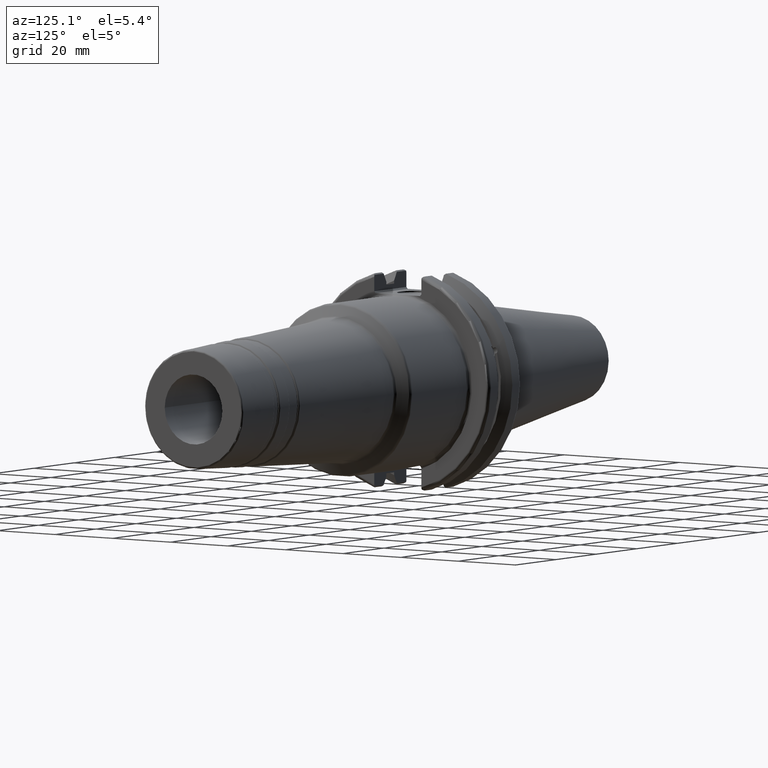
[diagram: clean part render]
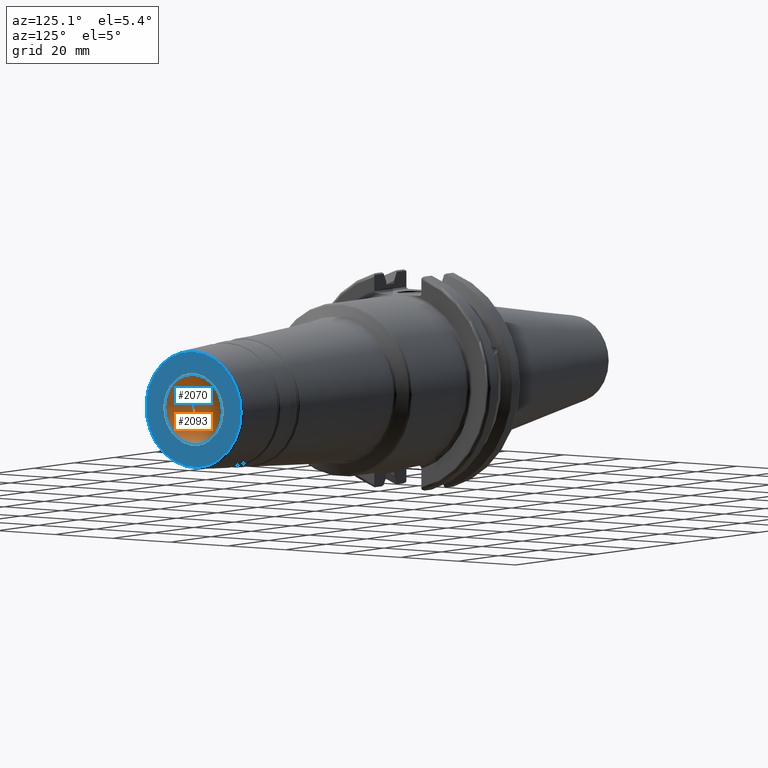
[diagram: same view with the hole feature highlighted: cylindrical wall and planar end face, labeled with their STEP entity ids]
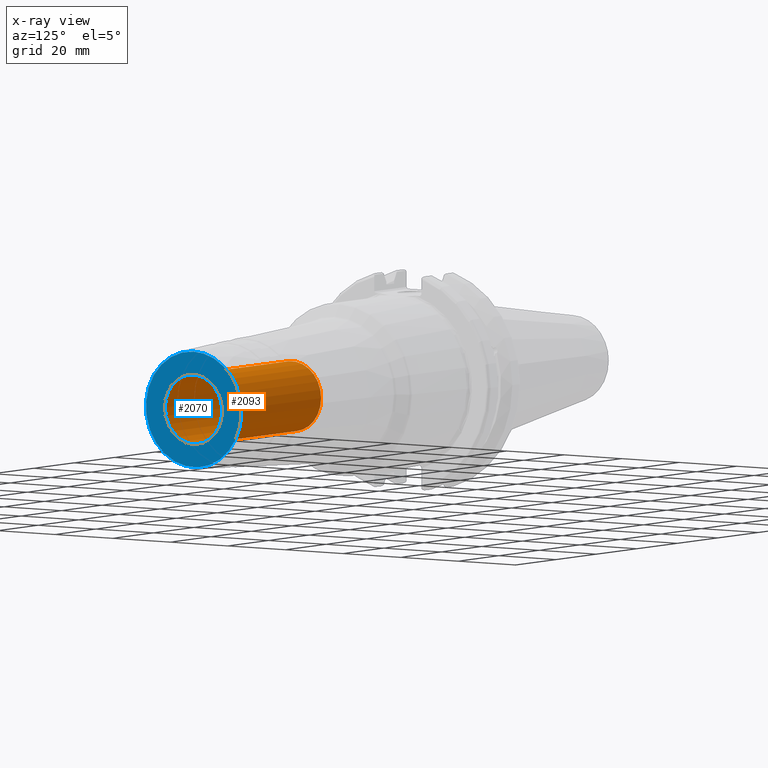
[diagram: x-ray of the same camera — body ghosted, the hole faces saturated]
A machine part, auxiliary view. The highlighted faces form one hole feature of diameter 20 mm: the cylindrical wall (entity #2093, orange) and its adjacent planar end face (entity #2070, blue) — they share a circular edge in the B-rep.
The next image is the same camera in x-ray (body ghosted, the hole faces saturated) — the bore reads through the body.
Wall:
#204=FACE_OUTER_BOUND('',#313,.T.);
#313=EDGE_LOOP('',(#1575,#1576,#1577,#1578,#1579,#1580));
#425=LINE('',#3545,#524);
#524=VECTOR('',#2758,10.);
#621=CIRCLE('',#2219,10.);
#622=CIRCLE('',#2220,10.);
#691=CIRCLE('',#2312,10.);
#692=CIRCLE('',#2313,10.);
#799=VERTEX_POINT('',#3336);
#800=VERTEX_POINT('',#3337);
#867=VERTEX_POINT('',#3544);
#868=VERTEX_POINT('',#3546);
#1047=EDGE_CURVE('',#799,#800,#621,.T.);
#1048=EDGE_CURVE('',#800,#799,#622,.T.);
#1137=EDGE_CURVE('',#800,#867,#425,.T.);
#1138=EDGE_CURVE('',#868,#867,#691,.T.);
#1139=EDGE_CURVE('',#867,#868,#692,.T.);
#1575=ORIENTED_EDGE('',*,*,#1047,.T.);
#1576=ORIENTED_EDGE('',*,*,#1137,.T.);
#1577=ORIENTED_EDGE('',*,*,#1138,.F.);
#1578=ORIENTED_EDGE('',*,*,#1139,.F.);
#1579=ORIENTED_EDGE('',*,*,#1137,.F.);
#1580=ORIENTED_EDGE('',*,*,#1048,.T.);
#2037=CYLINDRICAL_SURFACE('',#2311,10.);
#2093=ADVANCED_FACE('',(#204),#2037,.F.);
#2219=AXIS2_PLACEMENT_3D('',#3338,#2555,#2556);
#2220=AXIS2_PLACEMENT_3D('',#3339,#2557,#2558);
#2311=AXIS2_PLACEMENT_3D('',#3543,#2756,#2757);
#2312=AXIS2_PLACEMENT_3D('',#3547,#2759,#2760);
#2313=AXIS2_PLACEMENT_3D('',#3548,#2761,#2762);
#2555=DIRECTION('center_axis',(1.,0.,0.));
#2556=DIRECTION('ref_axis',(0.,0.,-1.));
#2557=DIRECTION('center_axis',(1.,0.,0.));
#2558=DIRECTION('ref_axis',(0.,0.,-1.));
#2756=DIRECTION('center_axis',(1.,0.,0.));
#2757=DIRECTION('ref_axis',(0.,1.,0.));
#2758=DIRECTION('',(-1.,0.,0.));
#2759=DIRECTION('center_axis',(1.,0.,0.));
#2760=DIRECTION('ref_axis',(0.,0.,-1.));
#2761=DIRECTION('center_axis',(1.,0.,0.));
#2762=DIRECTION('ref_axis',(0.,0.,-1.));
#3336=CARTESIAN_POINT('',(120.,10.,0.));
#3337=CARTESIAN_POINT('',(120.,-10.,-1.22464679914735E-15));
#3338=CARTESIAN_POINT('Origin',(120.,0.,0.));
#3339=CARTESIAN_POINT('Origin',(120.,0.,0.));
#3543=CARTESIAN_POINT('Origin',(95.6,0.,0.));
#3544=CARTESIAN_POINT('',(71.2,-10.,-1.22464679914735E-15));
#3545=CARTESIAN_POINT('',(95.6,-10.,-1.22464679914735E-15));
#3546=CARTESIAN_POINT('',(71.2,10.,0.));
#3547=CARTESIAN_POINT('Origin',(71.2,0.,0.));
#3548=CARTESIAN_POINT('Origin',(71.2,0.,0.));
End face:
#49=PLANE('',#2218);
#127=FACE_BOUND('',#290,.T.);
#181=FACE_OUTER_BOUND('',#289,.T.);
#289=EDGE_LOOP('',(#1400,#1401));
#290=EDGE_LOOP('',(#1402,#1403));
#612=CIRCLE('',#2208,16.5255177166426);
#617=CIRCLE('',#2213,16.5255177166426);
#621=CIRCLE('',#2219,10.);
#622=CIRCLE('',#2220,10.);
#791=VERTEX_POINT('',#3316);
#792=VERTEX_POINT('',#3317);
#799=VERTEX_POINT('',#3336);
#800=VERTEX_POINT('',#3337);
#1037=EDGE_CURVE('',#791,#792,#612,.T.);
#1042=EDGE_CURVE('',#792,#791,#617,.T.);
#1047=EDGE_CURVE('',#799,#800,#621,.T.);
#1048=EDGE_CURVE('',#800,#799,#622,.T.);
#1400=ORIENTED_EDGE('',*,*,#1037,.F.);
#1401=ORIENTED_EDGE('',*,*,#1042,.F.);
#1402=ORIENTED_EDGE('',*,*,#1047,.F.);
#1403=ORIENTED_EDGE('',*,*,#1048,.F.);
#2070=ADVANCED_FACE('',(#181,#127),#49,.T.);
#2208=AXIS2_PLACEMENT_3D('',#3318,#2532,#2533);
#2213=AXIS2_PLACEMENT_3D('',#3326,#2542,#2543);
#2218=AXIS2_PLACEMENT_3D('',#3335,#2553,#2554);
#2219=AXIS2_PLACEMENT_3D('',#3338,#2555,#2556);
#2220=AXIS2_PLACEMENT_3D('',#3339,#2557,#2558);
#2532=DIRECTION('center_axis',(-1.,0.,0.));
#2533=DIRECTION('ref_axis',(0.,-1.,1.83697019872103E-16));
#2542=DIRECTION('center_axis',(-1.,0.,0.));
#2543=DIRECTION('ref_axis',(0.,-1.,1.83697019872103E-16));
#2553=DIRECTION('center_axis',(1.,0.,0.));
#2554=DIRECTION('ref_axis',(0.,0.,-1.));
#2555=DIRECTION('center_axis',(1.,0.,0.));
#2556=DIRECTION('ref_axis',(0.,0.,-1.));
#2557=DIRECTION('center_axis',(1.,0.,0.));
#2558=DIRECTION('ref_axis',(0.,0.,-1.));
#3316=CARTESIAN_POINT('',(120.,16.5255177166426,-5.0594805939848E-15));
#3317=CARTESIAN_POINT('',(120.,-2.02379223759392E-15,16.5255177166426));
#3318=CARTESIAN_POINT('Origin',(120.,0.,0.));
#3326=CARTESIAN_POINT('Origin',(120.,0.,0.));
#3335=CARTESIAN_POINT('Origin',(120.,10.,0.));
#3336=CARTESIAN_POINT('',(120.,10.,0.));
#3337=CARTESIAN_POINT('',(120.,-10.,-1.22464679914735E-15));
#3338=CARTESIAN_POINT('Origin',(120.,0.,0.));
#3339=CARTESIAN_POINT('Origin',(120.,0.,0.));